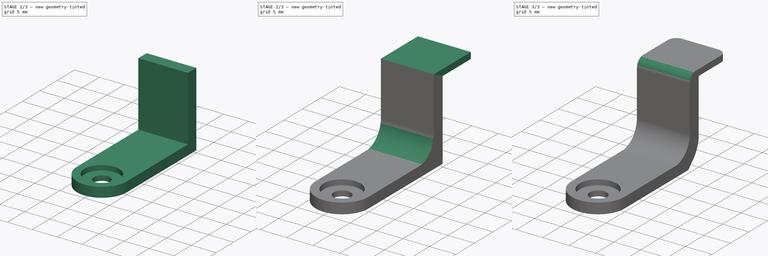
[diagram: build sequence overview — one tinted view per stage of 3, left to right]
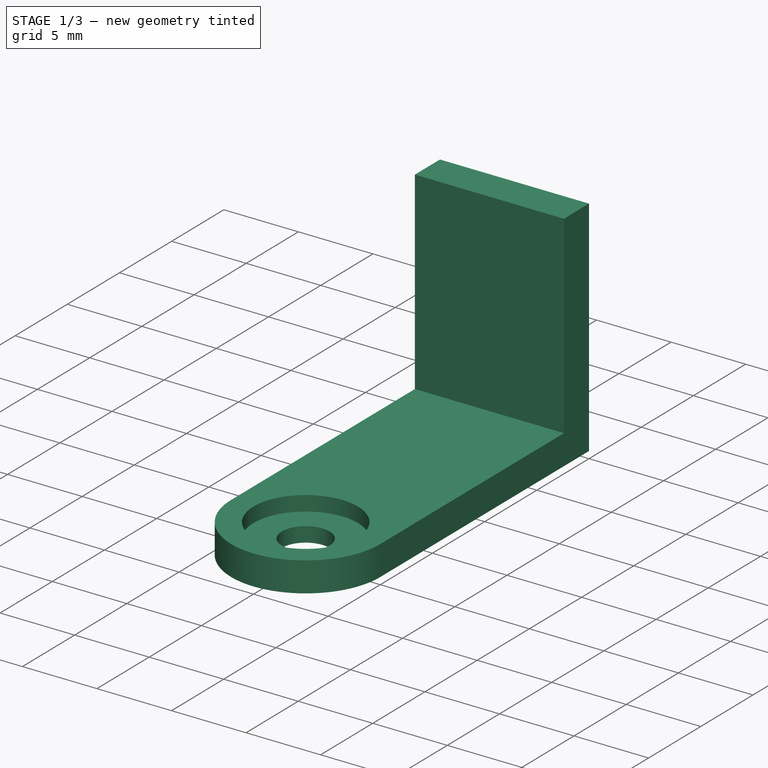
[diagram: stage 1 of 3 — iso view after this stage's code; geometry added in this stage tinted green]
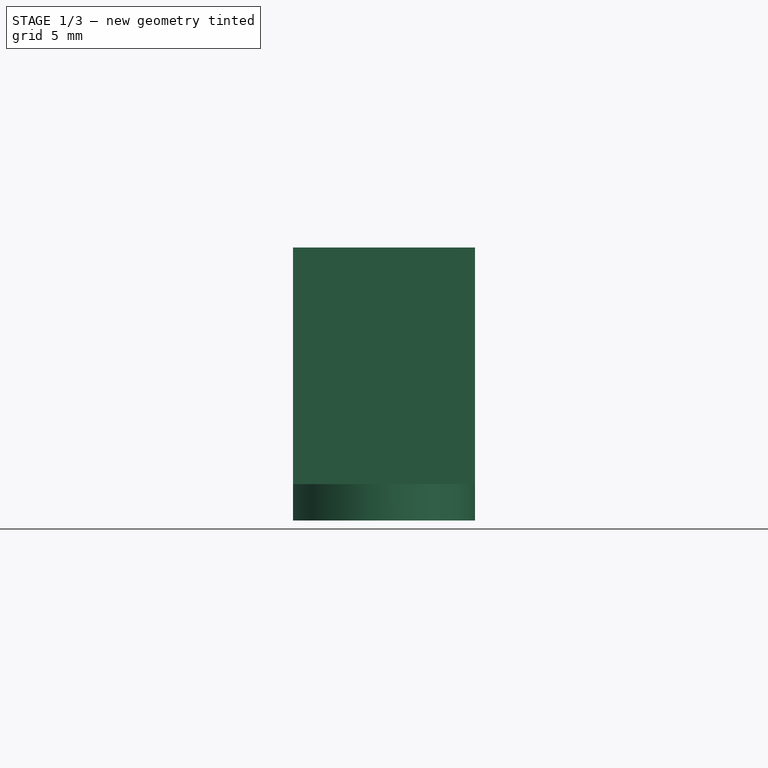
[diagram: stage 1 of 3 — front view after this stage's code; geometry added in this stage tinted green]
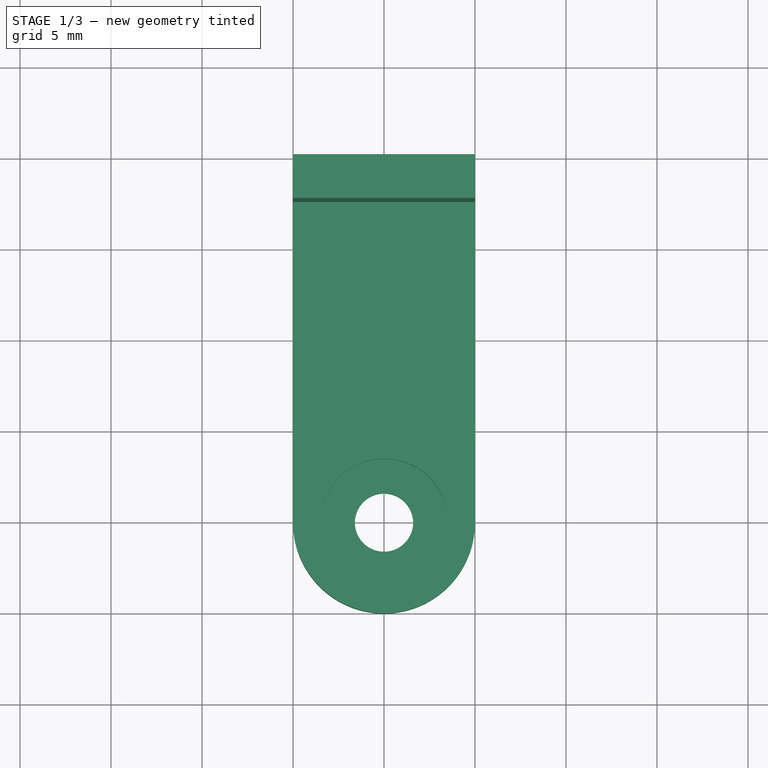
[diagram: stage 1 of 3 — top view after this stage's code; geometry added in this stage tinted green]
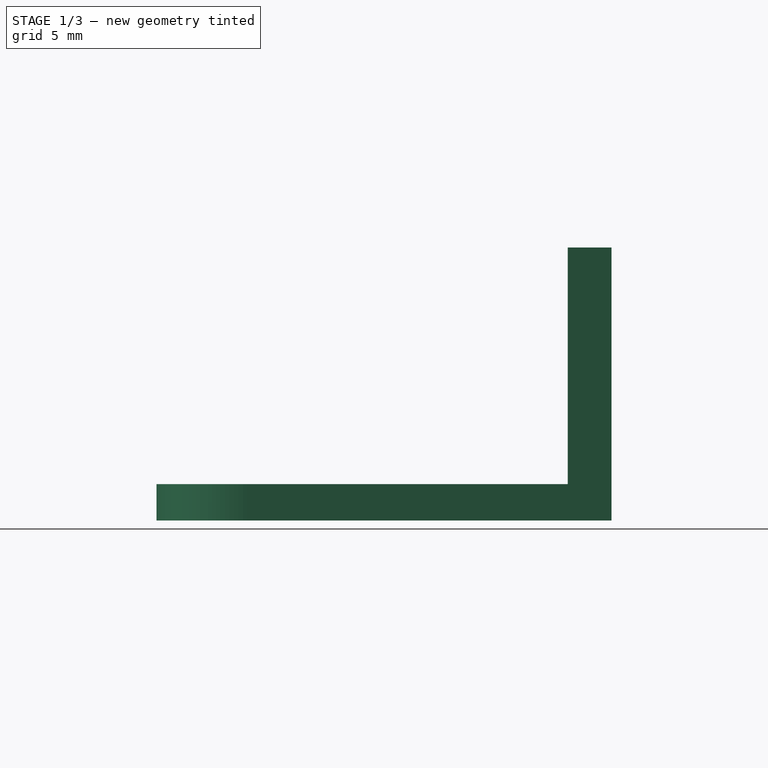
[diagram: stage 1 of 3 — right view after this stage's code; geometry added in this stage tinted green]
FCSTD DOCUMENT  (FreeCAD 0.20R29410 (Git))
Label: T610HDDLock
License: All rights reserved
LicenseURL: http://en.wikipedia.org/wiki/All_rights_reserved
objects: Sketcher::SketchObject×4, PartDesign::Pad×3, PartDesign::Fillet×3, PartDesign::Pocket×1, PartDesign::Chamfer×1, PartDesign::Body×1
note: 21 computed .brp shape members not serialized (recipe doc carries the construction recipe); baked Part::Feature solids carry a one-line shape summary decoded from their .brp

FEATURE [Sketcher::SketchObject] Sketch
  FullyConstrained = true
  MapMode = 5
  Support = -> [XY_Plane]
  sketch-geometry (6):
    g0: LineSegment StartX=-5 StartY=20 StartZ=0 EndX=5 EndY=20 EndZ=0
    g1: LineSegment StartX=5 StartY=20 StartZ=0 EndX=5 EndY=0 EndZ=0
    g2: LineSegment StartX=5 StartY=6e-16 StartZ=0 EndX=-5 EndY=6e-16 EndZ=0
    g3: LineSegment StartX=-5 StartY=6e-16 StartZ=0 EndX=-5 EndY=20 EndZ=0
    g4: ArcOfCircle CenterX=0 CenterY=0 CenterZ=0 NormalX=0 NormalY=0 NormalZ=1 AngleXU=0 Radius=5 StartAngle=3.14159 EndAngle=6.28319
    g5: Circle CenterX=0 CenterY=0 CenterZ=0 NormalX=0 NormalY=0 NormalZ=1 AngleXU=0 Radius=1.6
  constraints (16):
    c: Coincident(g0,g1)
    c: Coincident(g1,g2)
    c: Coincident(g2,g3)
    c: Coincident(g3,g0)
    c: Horizontal(g0)
    c: Horizontal(g2)
    c: Vertical(g1)
    c: Vertical(g3)
    c: PointOnObject(g4,g2)
    c: Coincident(g4,g2)
    c: Coincident(g4,g1)
    c: Coincident(g5,g4)
    c: DistanceY(g3,g0) = 20
    c: DistanceX(g0,g0) = 10
    c: Radius(g5) = 1.6
    c: Coincident(g4,g-1)
FEATURE [PartDesign::Pad] Pad
  Direction = (0,0,1)
  Length = 2
  Length2 = 10
  Profile = -> Sketch
  ReferenceAxis = -> Sketch [N_Axis]
  Type = 0
FEATURE [Sketcher::SketchObject] Sketch001
  AttachmentOffset = pos=(0,0,2) rot=(0,0,1;0rad)
  ExternalGeometry = -> [Sketch]
  FullyConstrained = true
  MapMode = 5
  Placement = pos=(0,0,2) rot=(0,0,1;0rad)
  Support = -> [XY_Plane]
  expr: .AttachmentOffset.Base.z = <<Sketch>>.AttachmentOffset.Base.z + <<Pad>>.Length
  sketch-geometry (4):
    g0: LineSegment StartX=-5 StartY=20 StartZ=0 EndX=5 EndY=20 EndZ=0
    g1: LineSegment StartX=5 StartY=20 StartZ=0 EndX=5 EndY=17.6 EndZ=0
    g2: LineSegment StartX=5 StartY=17.6 StartZ=0 EndX=-5 EndY=17.6 EndZ=0
    g3: LineSegment StartX=-5 StartY=17.6 StartZ=0 EndX=-5 EndY=20 EndZ=0
  constraints (10):
    c: Coincident(g0,g1)
    c: Coincident(g1,g2)
    c: Coincident(g2,g3)
    c: Coincident(g3,g0)
    c: Horizontal(g2)
    c: Vertical(g1)
    c: Vertical(g3)
    c: Coincident(g0,g-3)
    c: Coincident(g0,g-3)
    c: DistanceY(g3,g3) = 2.4
FEATURE [Sketcher::SketchObject] Sketch002
  AttachmentOffset = pos=(0,0,15) rot=(0,0,1;0rad)
  ExternalGeometry = -> [Sketch001]
  FullyConstrained = true
  MapMode = 5
  Placement = pos=(0,0,15) rot=(0,0,1;0rad)
  Support = -> [XY_Plane]
  expr: .AttachmentOffset.Base.z = <<Sketch001>>.AttachmentOffset.Base.z + <<Pad001>>.Length
  sketch-geometry (4):
    g0: LineSegment StartX=-5 StartY=17.6 StartZ=0 EndX=5 EndY=17.6 EndZ=0
    g1: LineSegment StartX=5 StartY=17.6 StartZ=0 EndX=5 EndY=27.6 EndZ=0
    g2: LineSegment StartX=5 StartY=27.6 StartZ=0 EndX=-5 EndY=27.6 EndZ=0
    g3: LineSegment StartX=-5 StartY=27.6 StartZ=0 EndX=-5 EndY=17.6 EndZ=0
  constraints (10):
    c: Coincident(g0,g1)
    c: Coincident(g1,g2)
    c: Coincident(g2,g3)
    c: Coincident(g3,g0)
    c: Horizontal(g2)
    c: Vertical(g1)
    c: Vertical(g3)
    c: Coincident(g0,g-3)
    c: Coincident(g0,g-3)
    c: DistanceY(g3,g3) = 10
FEATURE [Sketcher::SketchObject] Sketch003
  AttachmentOffset = pos=(0,0,2) rot=(0,0,1;0rad)
  ExternalGeometry = -> [Sketch]
  FullyConstrained = true
  MapMode = 5
  Placement = pos=(0,0,2) rot=(0,0,1;0rad)
  Support = -> [XY_Plane]
  expr: .AttachmentOffset.Base.z = <<Sketch>>.AttachmentOffset.Base.z + <<Pad>>.Length
  sketch-geometry (1):
    g0: Circle CenterX=-4.71e-14 CenterY=2.27e-14 CenterZ=0 NormalX=0 NormalY=0 NormalZ=1 AngleXU=0 Radius=3.5
  constraints (2):
    c: Coincident(g-3,g0)
    c: Radius(g0) = 3.5
FEATURE [PartDesign::Pocket] Pocket
  BaseFeature = -> Pad
  Direction = (0,0,-1)
  Length = 1
  Length2 = 5
  Profile = -> Sketch003
  ReferenceAxis = -> Sketch003 [N_Axis]
  Type = 0
FEATURE [PartDesign::Pad] Pad001
  BaseFeature = -> Pocket
  Direction = (0,0,1)
  Length = 13
  Length2 = 10
  Profile = -> Sketch001
  ReferenceAxis = -> Sketch001 [N_Axis]
  Refine = true
  Type = 0
  expr: Length = 15mm - <<Pad>>.Length
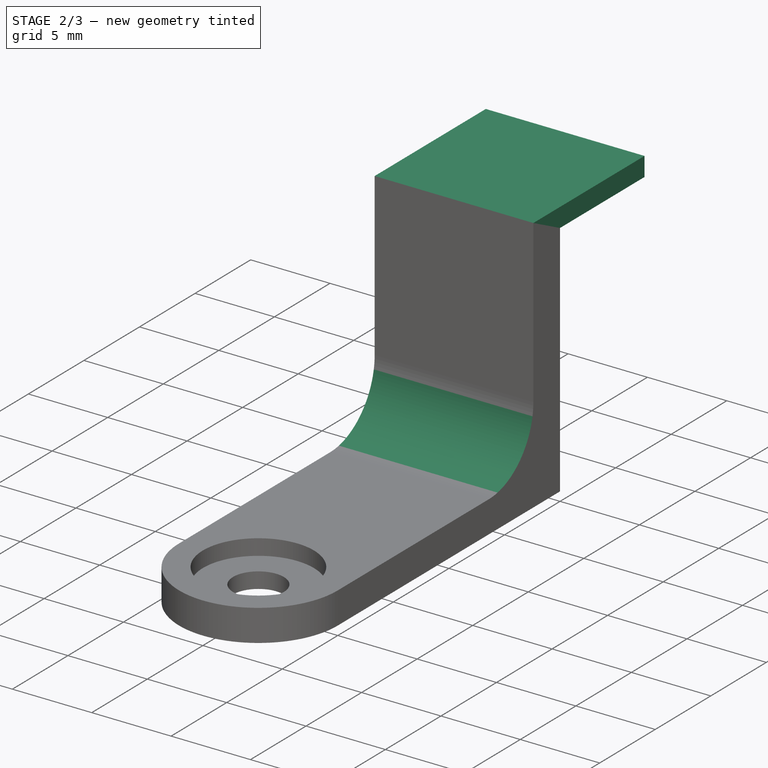
[diagram: stage 2 of 3 — iso view after this stage's code; geometry added in this stage tinted green]
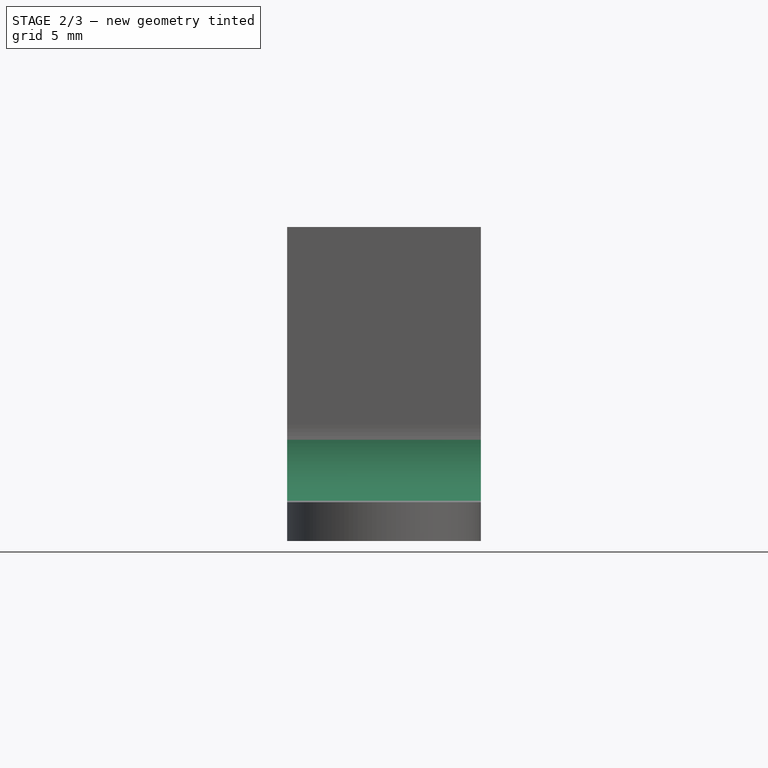
[diagram: stage 2 of 3 — front view after this stage's code; geometry added in this stage tinted green]
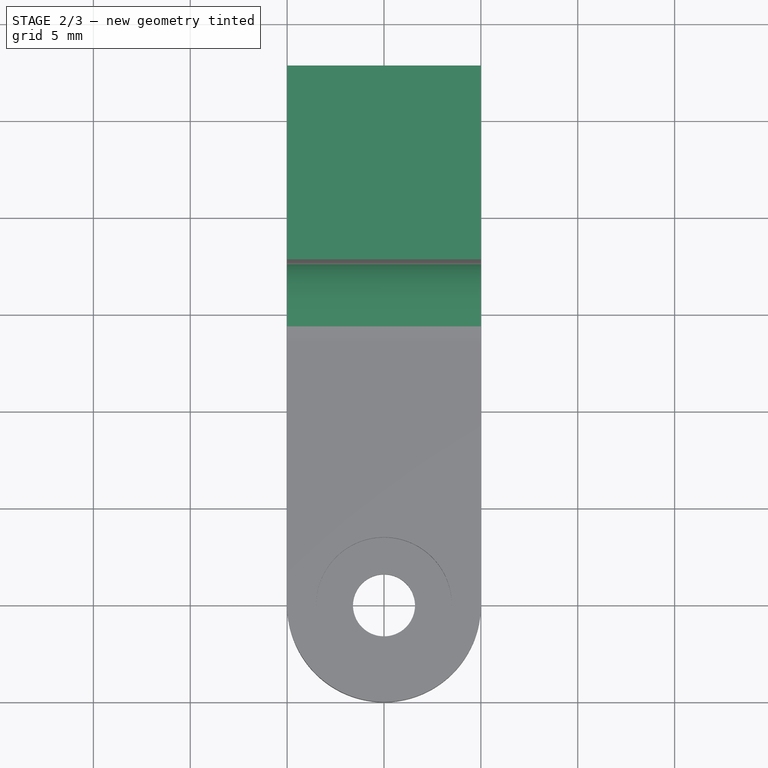
[diagram: stage 2 of 3 — top view after this stage's code; geometry added in this stage tinted green]
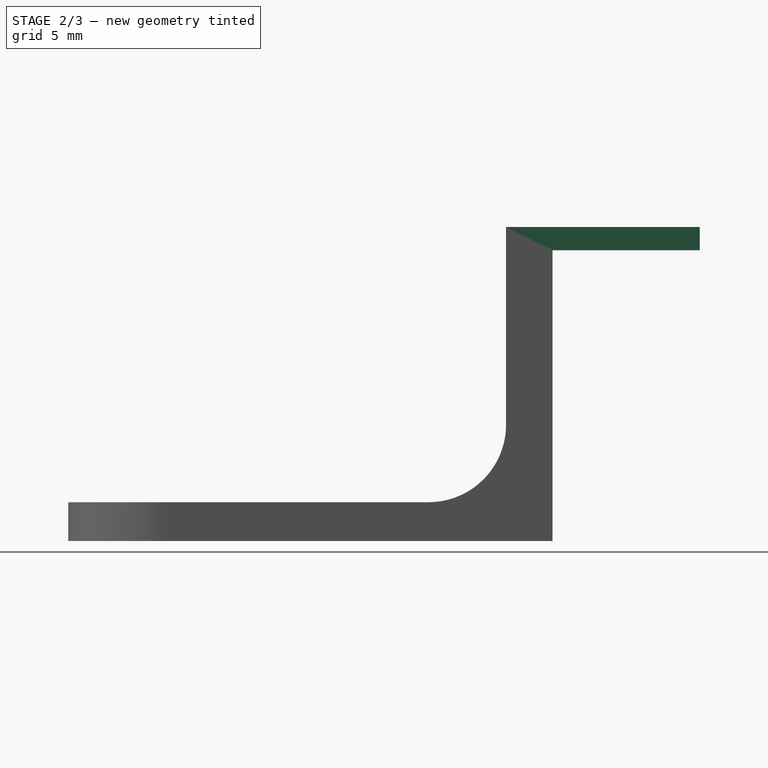
[diagram: stage 2 of 3 — right view after this stage's code; geometry added in this stage tinted green]
FEATURE [PartDesign::Pad] Pad002
  BaseFeature = -> Pad001
  Direction = (0,0,1)
  Length = 1.2
  Length2 = 10
  Profile = -> Sketch002
  ReferenceAxis = -> Sketch002 [N_Axis]
  Refine = true
  Type = 0
FEATURE [PartDesign::Fillet] Fillet
  Base = -> Pad002 [Edge17]
  BaseFeature = -> Pad002
  Radius = 4
  SupportTransform = false
  UseAllEdges = false
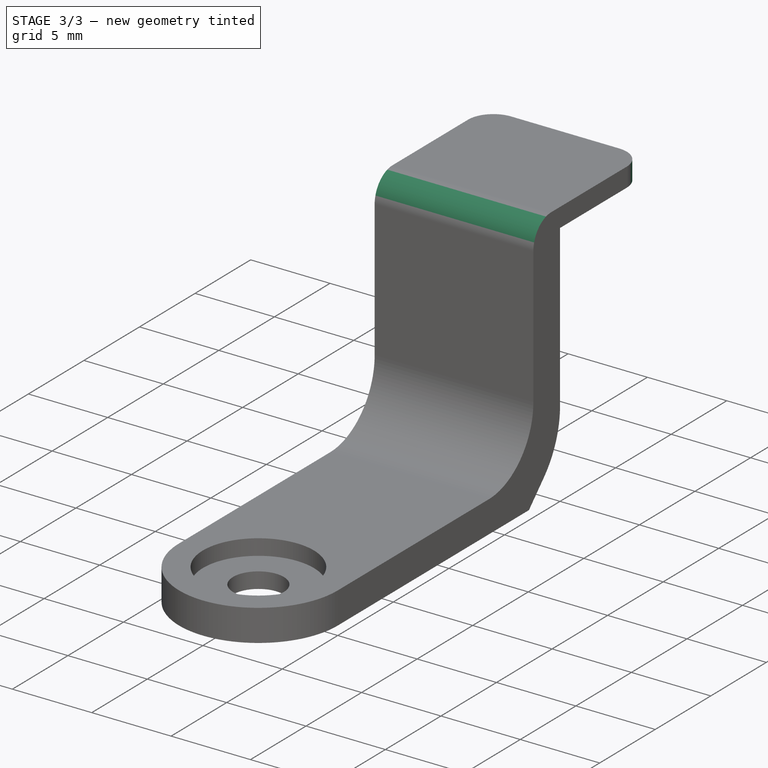
[diagram: stage 3 of 3 — iso view after this stage's code; geometry added in this stage tinted green]
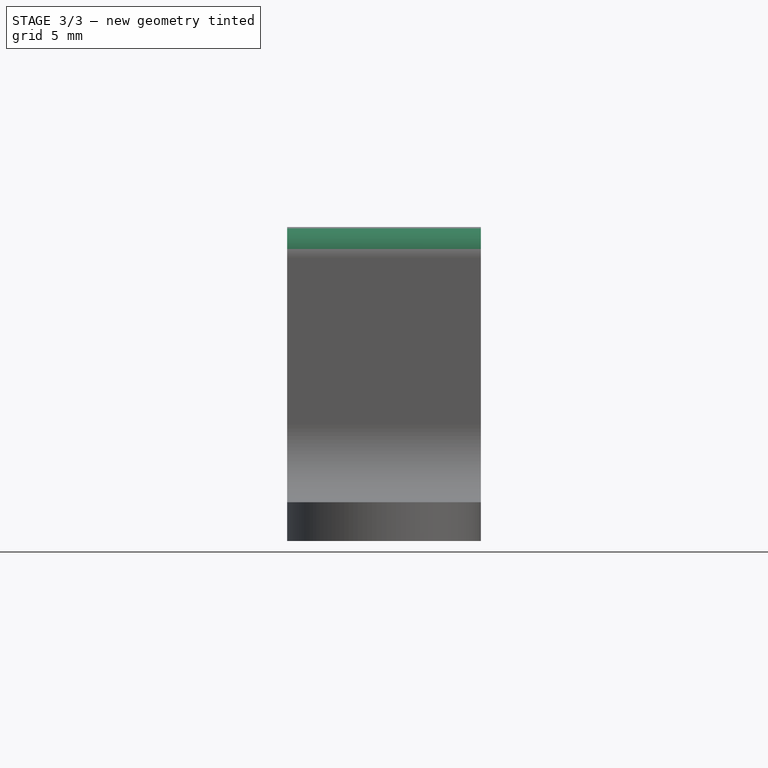
[diagram: stage 3 of 3 — front view after this stage's code; geometry added in this stage tinted green]
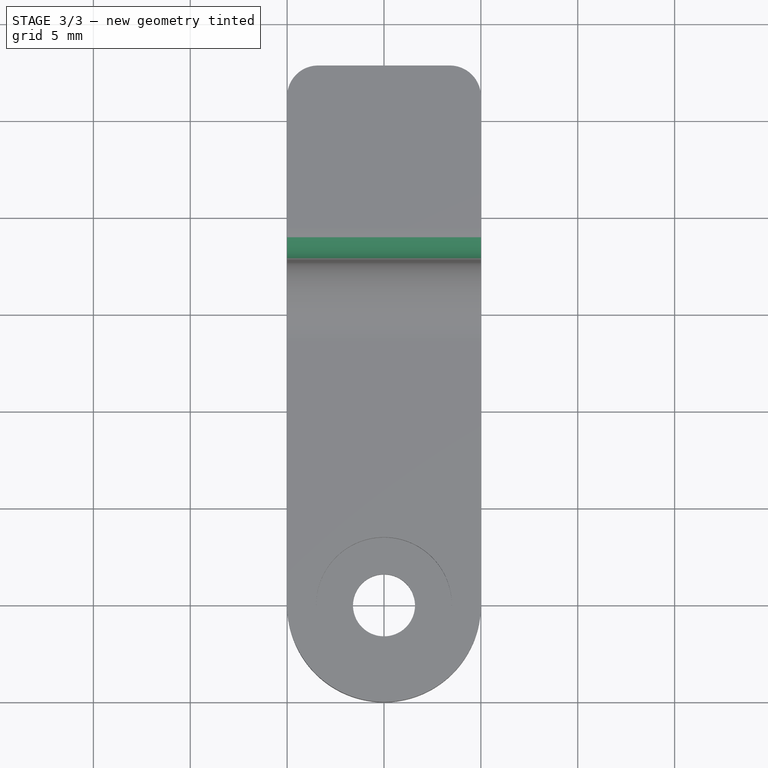
[diagram: stage 3 of 3 — top view after this stage's code; geometry added in this stage tinted green]
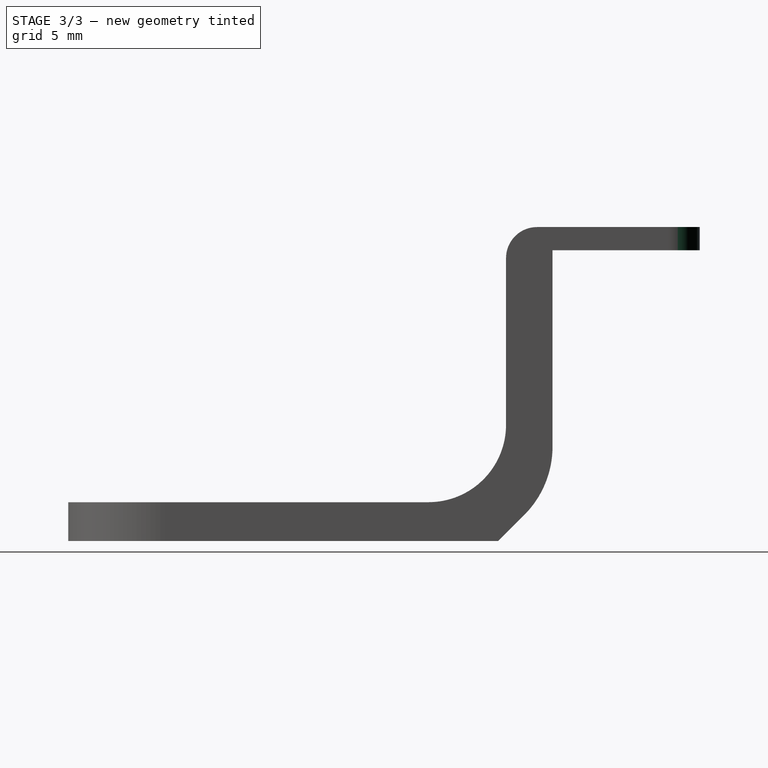
[diagram: stage 3 of 3 — right view after this stage's code; geometry added in this stage tinted green]
FEATURE [PartDesign::Chamfer] Chamfer
  Angle = 45
  Base = -> Fillet [Edge30]
  BaseFeature = -> Fillet
  ChamferType = 0
  FlipDirection = false
  Size = 2.8
  Size2 = 1
  SupportTransform = false
  UseAllEdges = false
FEATURE [PartDesign::Fillet] Fillet001
  Base = -> Chamfer [Edge16]
  BaseFeature = -> Chamfer
  Radius = 5
  SupportTransform = false
  UseAllEdges = false
FEATURE [PartDesign::Fillet] Fillet002
  Base = -> Fillet001 [Edge33,Edge8,Edge29]
  BaseFeature = -> Fillet001
  Radius = 1.6
  SupportTransform = false
  UseAllEdges = false
FEATURE [PartDesign::Body] Body
  Group = -> [Sketch,Pad,Sketch003,Sketch001,Pocket,Pad001,Sketch002,Pad002,Fillet,Chamfer,Fillet001,Fillet002]
  Origin = -> Origin
  Tip = -> Fillet002
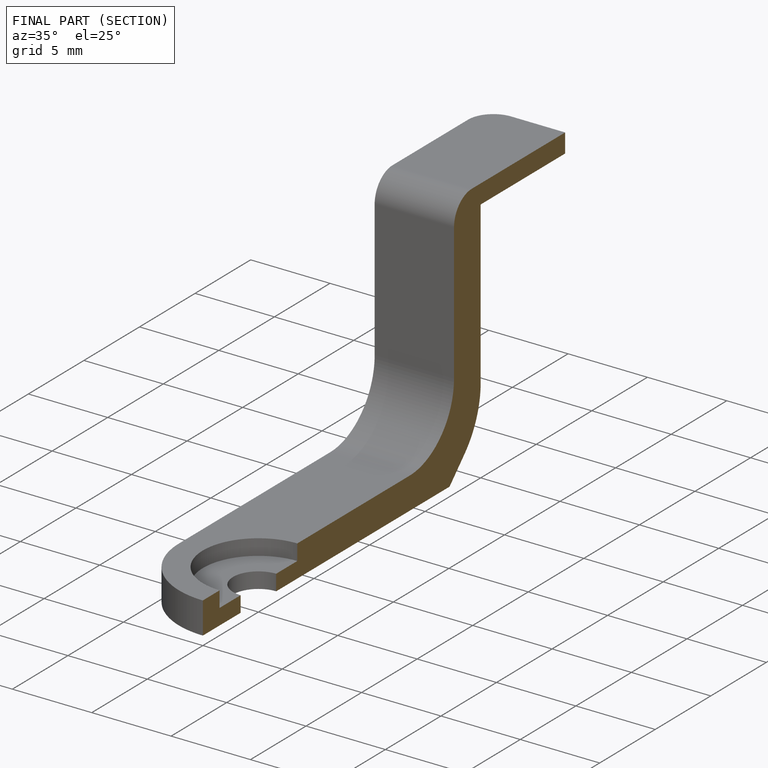
[diagram: finished part — half-section view (interior)]
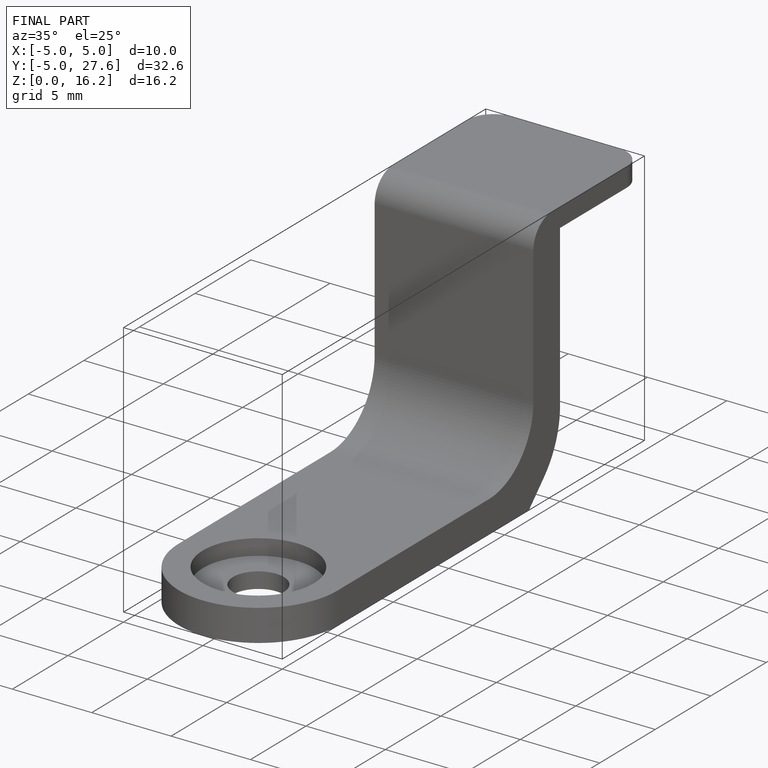
[diagram: finished part — iso view with bounding-box wireframe]
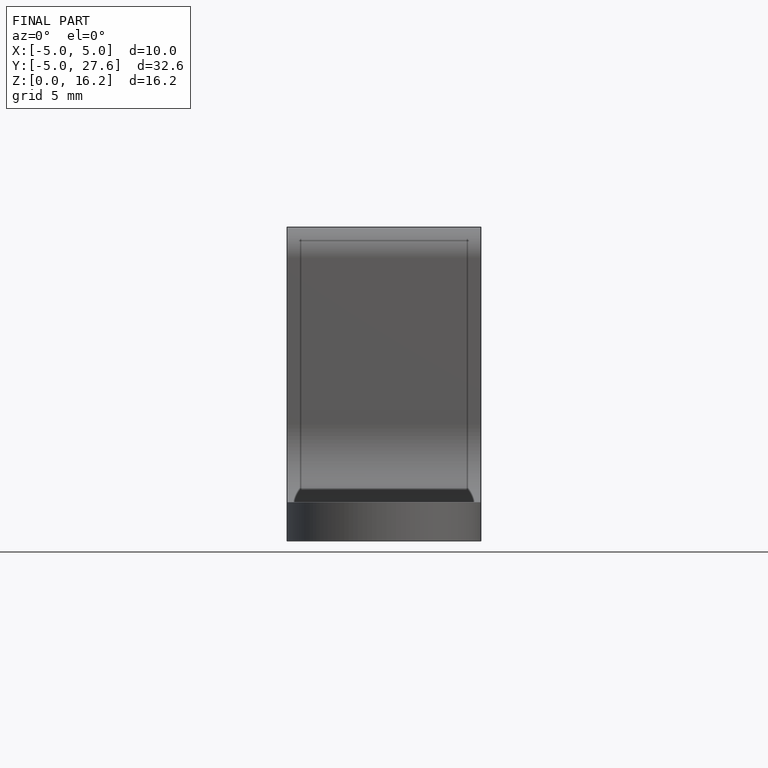
[diagram: finished part — front view with bounding-box wireframe]
